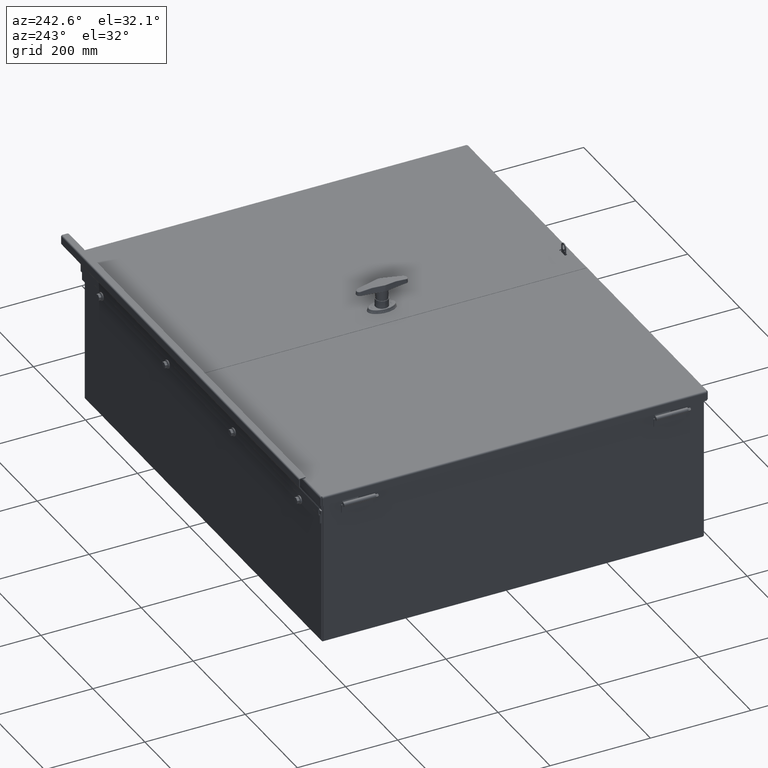
[diagram: clean part render]
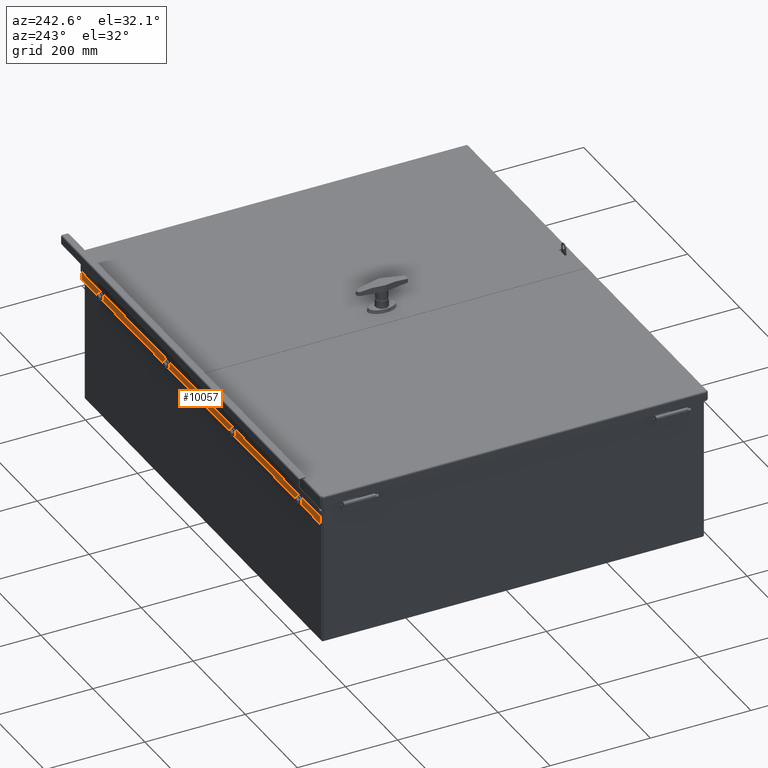
[diagram: same view with one face highlighted and labeled with its STEP entity id]
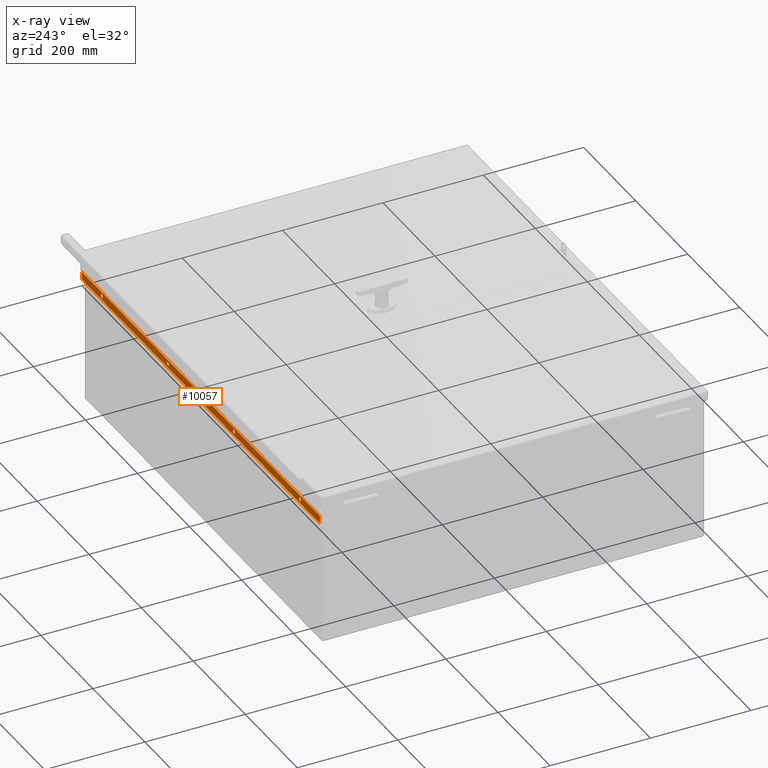
[diagram: x-ray of the same camera — body ghosted, the highlighted face saturated]
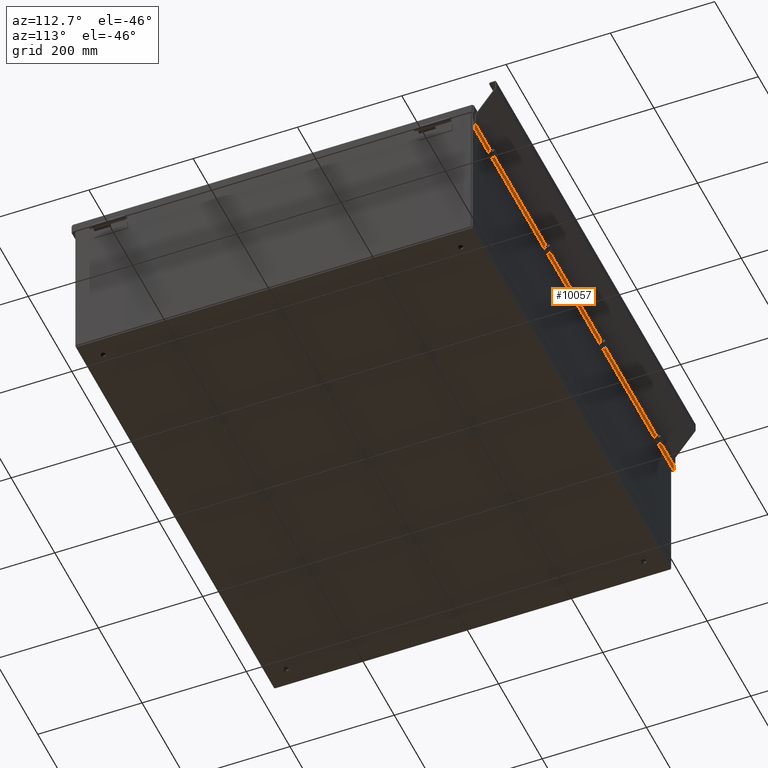
[diagram: same view with one face highlighted and labeled with its STEP entity id]
A machine part, auxiliary view. The second image highlights one B-rep face of the part: STEP entity #10057.
The next image is the same camera in x-ray: the body ghosted, the highlighted face saturated — about 0% of this face is hidden behind the body in this view.
A second angle (auxiliary view) of the same face is appended — the face is thin or edge-on in the first view.
In plain terms, the highlighted planar face has unit normal (0, 1, 0).
Its self-contained STEP definition (entity closure, byte-faithful):
#837=PLANE($,#10954);
#1511=LINE($,#16348,#2259);
#1531=LINE($,#16412,#2279);
#1538=LINE($,#16454,#2286);
#1539=LINE($,#16456,#2287);
#2259=VECTOR($,#13116,0.611504022560228);
#2279=VECTOR($,#13166,0.611504022560228);
#2286=VECTOR($,#13211,36.);
#2287=VECTOR($,#13214,36.);
#2566=FACE_BOUND($,#3693,.T.);
#2567=FACE_BOUND($,#3694,.T.);
#2568=FACE_BOUND($,#3695,.T.);
#2569=FACE_BOUND($,#3696,.T.);
#2570=FACE_BOUND($,#3697,.T.);
#3693=EDGE_LOOP($,(#8262));
#3694=EDGE_LOOP($,(#8263));
#3695=EDGE_LOOP($,(#8264));
#3696=EDGE_LOOP($,(#8265));
#3697=EDGE_LOOP($,(#8266,#8267,#8268,#8269));
#4205=CIRCLE($,#10941,0.140625);
#4207=CIRCLE($,#10944,0.140625);
#4209=CIRCLE($,#10947,0.140625);
#4211=CIRCLE($,#10950,0.140625);
#4939=VERTEX_POINT($,#16345);
#4940=VERTEX_POINT($,#16347);
#4968=VERTEX_POINT($,#16409);
#4969=VERTEX_POINT($,#16411);
#4978=VERTEX_POINT($,#16431);
#4980=VERTEX_POINT($,#16436);
#4982=VERTEX_POINT($,#16441);
#4984=VERTEX_POINT($,#16446);
#6087=EDGE_CURVE($,#4940,#4939,#1511,.T.);
#6119=EDGE_CURVE($,#4969,#4968,#1531,.T.);
#6129=EDGE_CURVE($,#4978,#4978,#4205,.T.);
#6131=EDGE_CURVE($,#4980,#4980,#4207,.T.);
#6133=EDGE_CURVE($,#4982,#4982,#4209,.T.);
#6135=EDGE_CURVE($,#4984,#4984,#4211,.T.);
#6139=EDGE_CURVE($,#4968,#4940,#1538,.T.);
#6140=EDGE_CURVE($,#4969,#4939,#1539,.T.);
#8262=ORIENTED_EDGE($,*,*,#6129,.T.);
#8263=ORIENTED_EDGE($,*,*,#6131,.T.);
#8264=ORIENTED_EDGE($,*,*,#6133,.T.);
#8265=ORIENTED_EDGE($,*,*,#6135,.T.);
#8266=ORIENTED_EDGE($,*,*,#6140,.F.);
#8267=ORIENTED_EDGE($,*,*,#6119,.T.);
#8268=ORIENTED_EDGE($,*,*,#6139,.T.);
#8269=ORIENTED_EDGE($,*,*,#6087,.T.);
#10057=ADVANCED_FACE($,(#2566,#2567,#2568,#2569,#2570),#837,.T.);
#10941=AXIS2_PLACEMENT_3D($,#16432,#13183,#13184);
#10944=AXIS2_PLACEMENT_3D($,#16437,#13189,#13190);
#10947=AXIS2_PLACEMENT_3D($,#16442,#13195,#13196);
#10950=AXIS2_PLACEMENT_3D($,#16447,#13201,#13202);
#10954=AXIS2_PLACEMENT_3D($,#16455,#13212,#13213);
#13116=DIRECTION($,(0.,-5.3377582535342E-016,1.));
#13166=DIRECTION($,(0.,5.3377582535342E-016,-1.));
#13183=DIRECTION('center_axis',(1.31128703695885E-016,-1.,-5.3377582535342E-016));
#13184=DIRECTION('ref_axis',(-1.,-1.31128703695885E-016,0.));
#13189=DIRECTION('center_axis',(1.31128703695885E-016,-1.,-5.3377582535342E-016));
#13190=DIRECTION('ref_axis',(-1.,-1.31128703695885E-016,0.));
#13195=DIRECTION('center_axis',(1.31128703695885E-016,-1.,-5.3377582535342E-016));
#13196=DIRECTION('ref_axis',(-1.,-1.31128703695885E-016,0.));
#13201=DIRECTION('center_axis',(1.31128703695885E-016,-1.,-5.3377582535342E-016));
#13202=DIRECTION('ref_axis',(-1.,-1.31128703695885E-016,0.));
#13211=DIRECTION($,(-1.,-1.31128703695885E-016,0.));
#13212=DIRECTION('center_axis',(-1.31128703695885E-016,1.,5.3377582535342E-016));
#13213=DIRECTION('ref_axis',(0.,-5.63993296509579E-016,1.));
#13214=DIRECTION($,(-1.,-9.27219955915613E-017,-9.27219955915618E-017));
#16345=CARTESIAN_POINT('',(5.59444769600129E-015,-1.07721196813177,-3.45152609866905));
#16347=CARTESIAN_POINT('',(5.59482469102441E-015,-1.07721196813177,-4.06303012122927));
#16348=CARTESIAN_POINT($,(0.,-1.07721196813177,-3.40793012122927));
#16409=CARTESIAN_POINT('',(36.,-1.07721196813177,-4.06303012122927));
#16411=CARTESIAN_POINT('',(36.,-1.07721196813176,-3.45152609866905));
#16412=CARTESIAN_POINT($,(36.,-1.07721196813177,-3.40793012122927));
#16431=CARTESIAN_POINT('',(32.859375,-1.07721196813177,-3.75053012122927));
#16432=CARTESIAN_POINT('Origin',(33.,-1.07721196813177,-3.75053012122927));
#16436=CARTESIAN_POINT('',(22.859375,-1.07721196813177,-3.75053012122927));
#16437=CARTESIAN_POINT('Origin',(23.,-1.07721196813177,-3.75053012122927));
#16441=CARTESIAN_POINT('',(12.859375,-1.07721196813177,-3.75053012122927));
#16442=CARTESIAN_POINT('Origin',(13.,-1.07721196813177,-3.75053012122927));
#16446=CARTESIAN_POINT('',(2.85937500000001,-1.07721196813177,-3.75053012122927));
#16447=CARTESIAN_POINT('Origin',(3.00000000000001,-1.07721196813177,-3.75053012122927));
#16454=CARTESIAN_POINT($,(36.,-1.07721196813177,-4.06303012122927));
#16455=CARTESIAN_POINT('Origin',(36.,-1.07721196813177,-4.06303012122927));
#16456=CARTESIAN_POINT($,(5.58796326335064E-015,-1.07721196813176,-3.45152609866905));